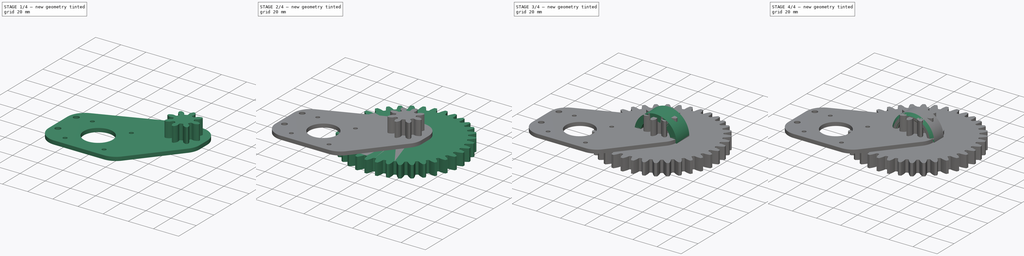
[diagram: build sequence overview — one tinted view per stage of 4, left to right]
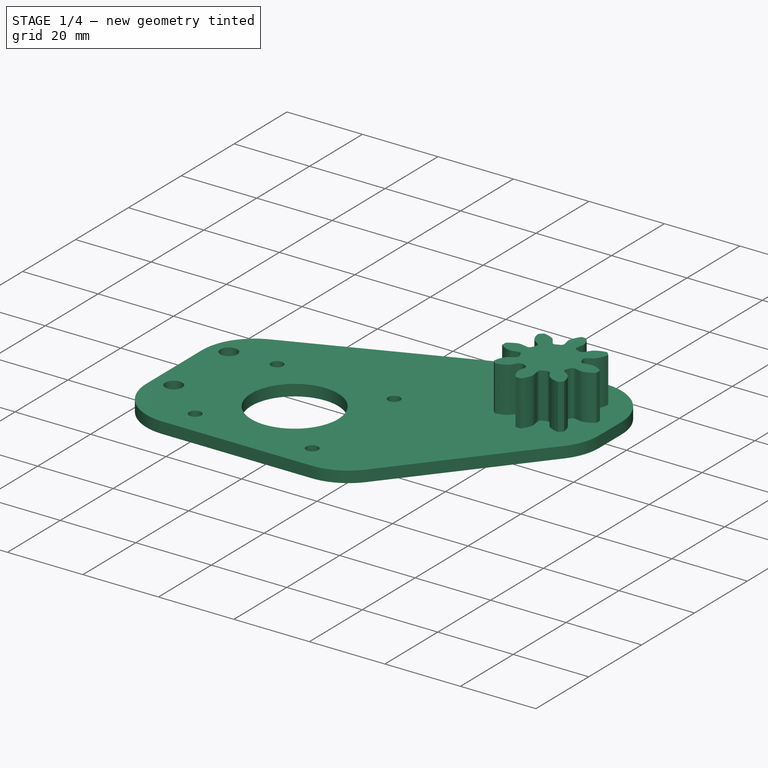
[diagram: stage 1 of 4 — iso view after this stage's code; geometry added in this stage tinted green]
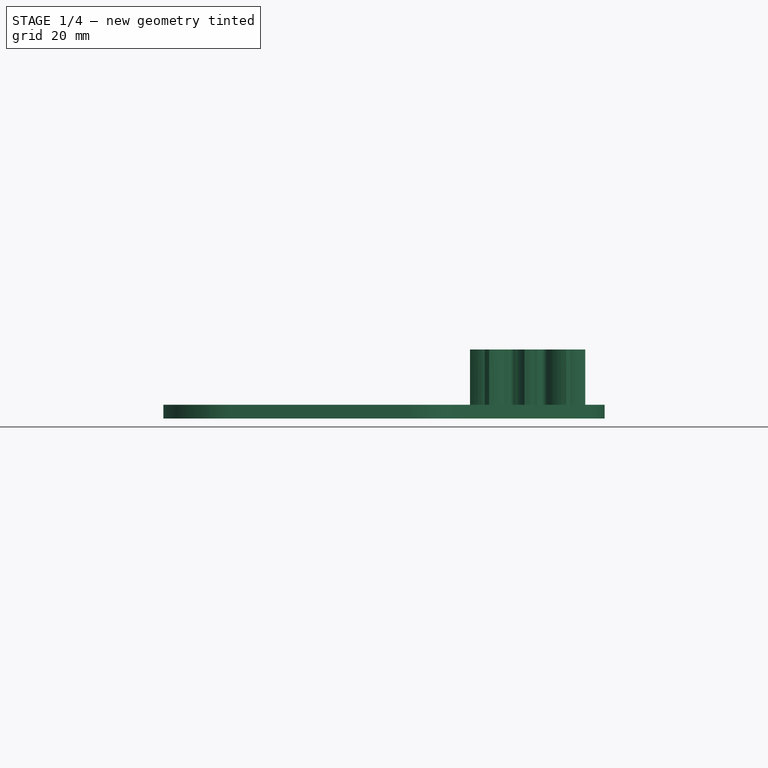
[diagram: stage 1 of 4 — front view after this stage's code; geometry added in this stage tinted green]
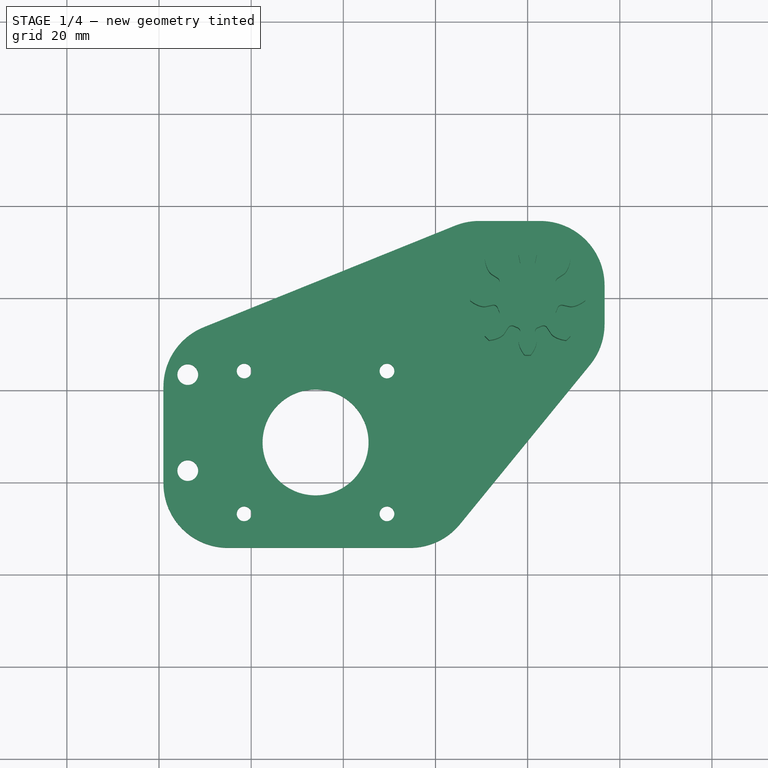
[diagram: stage 1 of 4 — top view after this stage's code; geometry added in this stage tinted green]
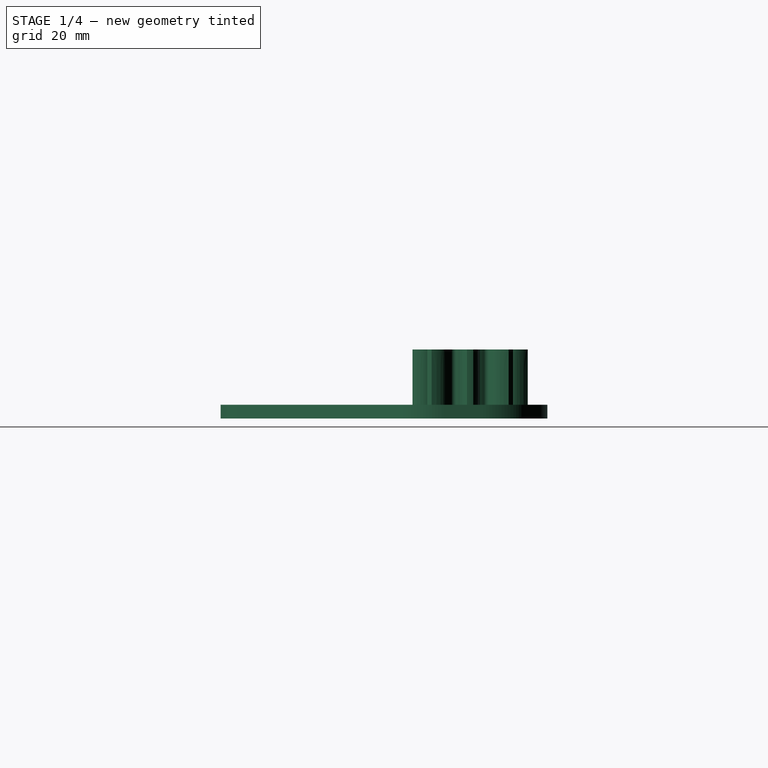
[diagram: stage 1 of 4 — right view after this stage's code; geometry added in this stage tinted green]
FCSTD DOCUMENT  (FreeCAD 0.21R33771 (Git))
Label: update_rolo
License: All rights reserved
LicenseURL: http://en.wikipedia.org/wiki/All_rights_reserved
objects: Sketcher::SketchObject×5, PartDesign::Pad×5, PartDesign::Body×4, PartDesign::Pocket×3, PartDesign::Chamfer×3, Part::Part2DObjectPython×3, PartDesign::Fillet×2, Part::Feature×2, PartDesign::Hole×1
note: 42 computed .brp shape members not serialized (recipe doc carries the construction recipe); baked Part::Feature solids carry a one-line shape summary decoded from their .brp

FEATURE [PartDesign::Body] Body001  label="reducao"
  Group = -> [InvoluteGear,InvoluteGear001,Sketch002,Pad001,Pad002,Pocket001]
  Origin = -> Origin001
  Tip = -> Pocket001
FEATURE [Part::Part2DObjectPython] InvoluteGear002  # Draft 2D object (typed FeaturePython)
  AddendumCoefficient = 1
  DedendumCoefficient = 1.25
  ExternalGear = true
  HighPrecision = true
  Modules = 2.5
  NumberOfTeeth = 8
  PressureAngle = 20
  ProfileShiftCoefficient = 0
  RootFilletCoefficient = 0.38
FEATURE [Part::Feature] Part__Feature  label="Body"
  Placement = pos=(-46,-31.3,-17.1) rot=(0,0,1;0rad)
  shape: bbox 42 x 42 x 47 mm, 22 faces (baked)
FEATURE [PartDesign::Pad] Pad003
  Direction = (0,0,1)
  Length = 15
  Length2 = 10
  Profile = -> InvoluteGear002
  ReferenceAxis = -> InvoluteGear002 [N_Axis]
  Type = 0
FEATURE [PartDesign::Body] Body002  label="pinhao"
  Group = -> [InvoluteGear002,Pad003]
  Origin = -> Origin002
  Placement = pos=(-46.0211,-31.401,-11) rot=(0,0,-1;0.244346rad)
  Tip = -> Pad003
FEATURE [Sketcher::SketchObject] Sketch003
  FullyConstrained = false
  MapMode = 5
  Support = -> [XY_Plane003]
  sketch-geometry (6):
    g0: LineSegment StartX=-79.0402 StartY=-9.81434 StartZ=0 EndX=-79.0402 EndY=-54.1565 EndZ=0
    g1: LineSegment StartX=-79.0402 StartY=-54.1565 StartZ=0 EndX=-18.8889 EndY=-54.1565 EndZ=0
    g2: LineSegment StartX=16.6954 StartY=-10.5598 StartZ=0 EndX=16.6954 EndY=16.7765 EndZ=0
    g3: LineSegment StartX=16.6954 StartY=16.7765 StartZ=0 EndX=-13.2331 EndY=16.7765 EndZ=0
    g4: LineSegment StartX=-13.2331 StartY=16.7765 StartZ=0 EndX=-79.0402 EndY=-9.81434 EndZ=0
    g5: LineSegment StartX=-18.8889 StartY=-54.1565 StartZ=0 EndX=16.6954 EndY=-10.5598 EndZ=0
  constraints (10):
    c: Vertical(g0)
    c: Coincident(g0,g1)
    c: Horizontal(g1)
    c: Vertical(g2)
    c: Coincident(g2,g3)
    c: Horizontal(g3)
    c: Coincident(g3,g4)
    c: Coincident(g4,g0)
    c: Coincident(g5,g1)
    c: Coincident(g5,g2)
FEATURE [Sketcher::SketchObject] Sketch004
  FullyConstrained = false
  MapMode = 5
  Support = -> [XY_Plane003]
  sketch-geometry (13):
    g0: Circle CenterX=0 CenterY=0 CenterZ=0 NormalX=0 NormalY=0 NormalZ=1 AngleXU=0 Radius=2.25
    g1: LineSegment StartX=-61.5285 StartY=-15.7816 StartZ=0 EndX=-30.5285 EndY=-15.7816 EndZ=0
    g2: LineSegment StartX=-30.5285 StartY=-15.7816 StartZ=0 EndX=-30.5285 EndY=-46.7816 EndZ=0
    g3: LineSegment StartX=-30.5285 StartY=-46.7816 StartZ=0 EndX=-61.5285 EndY=-46.7816 EndZ=0
    g4: LineSegment StartX=-61.5285 StartY=-46.7816 StartZ=0 EndX=-61.5285 EndY=-15.7816 EndZ=0
    g5: Circle CenterX=-61.5285 CenterY=-15.7816 CenterZ=0 NormalX=0 NormalY=0 NormalZ=1 AngleXU=0 Radius=1.6
    g6: Circle CenterX=-30.5285 CenterY=-15.7816 CenterZ=0 NormalX=0 NormalY=0 NormalZ=1 AngleXU=0 Radius=1.6
    g7: Circle CenterX=-61.5285 CenterY=-46.7816 CenterZ=0 NormalX=0 NormalY=0 NormalZ=1 AngleXU=0 Radius=1.6
    g8: Circle CenterX=-30.5285 CenterY=-46.7816 CenterZ=0 NormalX=0 NormalY=0 NormalZ=1 AngleXU=0 Radius=1.6
    g9: Circle CenterX=-46.0285 CenterY=-31.2816 CenterZ=0 NormalX=0 NormalY=0 NormalZ=1 AngleXU=0 Radius=15.5
    g10: Circle CenterX=-46.0285 CenterY=-31.2816 CenterZ=0 NormalX=0 NormalY=0 NormalZ=1 AngleXU=0 Radius=11.5
    g11: Circle CenterX=-73.7574 CenterY=-16.5649 CenterZ=0 NormalX=0 NormalY=0 NormalZ=1 AngleXU=0 Radius=2.25
    g12: Circle CenterX=-73.7574 CenterY=-37.4025 CenterZ=0 NormalX=0 NormalY=0 NormalZ=1 AngleXU=0 Radius=2.25
  constraints (28):
    c: Coincident(g0,g-1)
    c: Diameter(g0) = 4.5
    c: Coincident(g1,g2)
    c: Coincident(g2,g3)
    c: Coincident(g3,g4)
    c: Coincident(g4,g1)
    c: Horizontal(g1)
    c: Horizontal(g3)
    c: Vertical(g2)
    c: Vertical(g4)
    c: Equal(g2,g3)
    c: DistanceY(g2,g2) = 31
    c: Coincident(g5,g1)
    c: Diameter(g5) = 3.2
    c: Equal(g5,g6) = 3.2
    c: Equal(g5,g7) = 3.2
    c: Equal(g5,g8) = 3.2
    c: Tangent(g9,g1)
    c: Tangent(g9,g3)
    c: Tangent(g9,g4)
    c: Coincident(g3,g7)
    c: Coincident(g2,g8)
    c: Coincident(g1,g6)
    c: Coincident(g10,g9)
    c: Diameter(g10) = 23
    c: Vertical(g12,g11)
    c: Equal(g12,g11)
    c: Equal(g11,g0)
FEATURE [PartDesign::Pad] Pad004
  Direction = (0,0,1)
  Length = 3
  Length2 = 10
  Profile = -> Sketch003
  ReferenceAxis = -> Sketch003 [N_Axis]
  Type = 0
FEATURE [PartDesign::Pocket] Pocket002
  BaseFeature = -> Pad004
  Direction = (0,0,-1)
  Length = 5
  Length2 = 5
  Midplane = true
  Profile = -> Sketch004
  ReferenceAxis = -> Sketch004 [N_Axis]
  Type = 1
FEATURE [PartDesign::Fillet] Fillet001
  Base = -> Pocket002 [Edge2,Edge1,Edge8,Edge34,Edge33,Edge5]
  BaseFeature = -> Pocket002
  Radius = 14
  SupportTransform = false
  UseAllEdges = false
FEATURE [PartDesign::Body] Body003  label="suporte"
  Group = -> [Sketch003,Sketch004,Pad004,Pocket002,Fillet001]
  Origin = -> Origin003
  Placement = pos=(0,0,-16.7) rot=(0,0,1;0rad)
  Tip = -> Fillet001
FEATURE [Part::Feature] Body004  label="suporte001"
  Placement = pos=(0,0,15.5) rot=(0,0,1;0rad)
  shape: bbox 95.74 x 70.93 x 3 mm, 22 faces (baked)
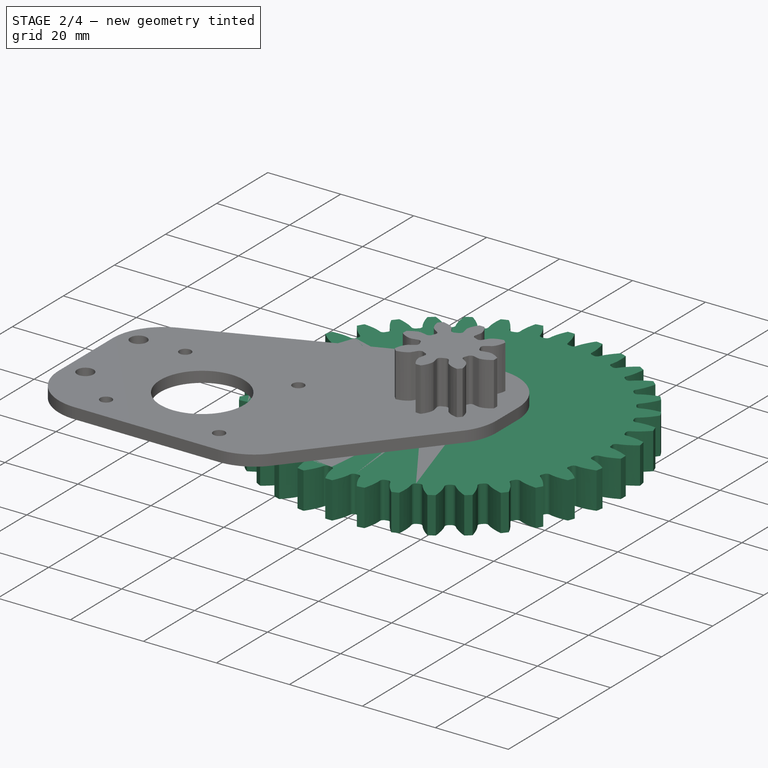
[diagram: stage 2 of 4 — iso view after this stage's code; geometry added in this stage tinted green]
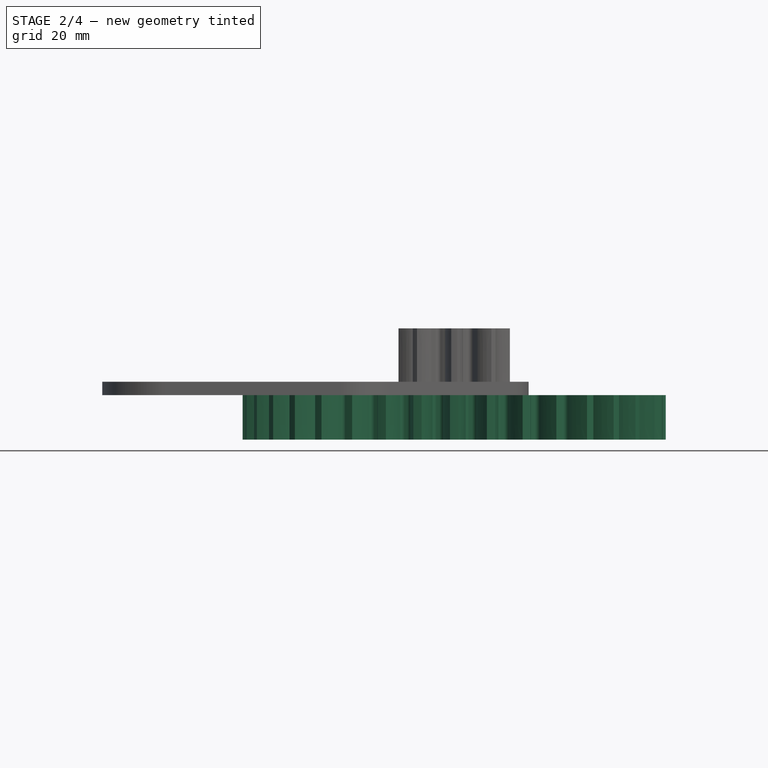
[diagram: stage 2 of 4 — front view after this stage's code; geometry added in this stage tinted green]
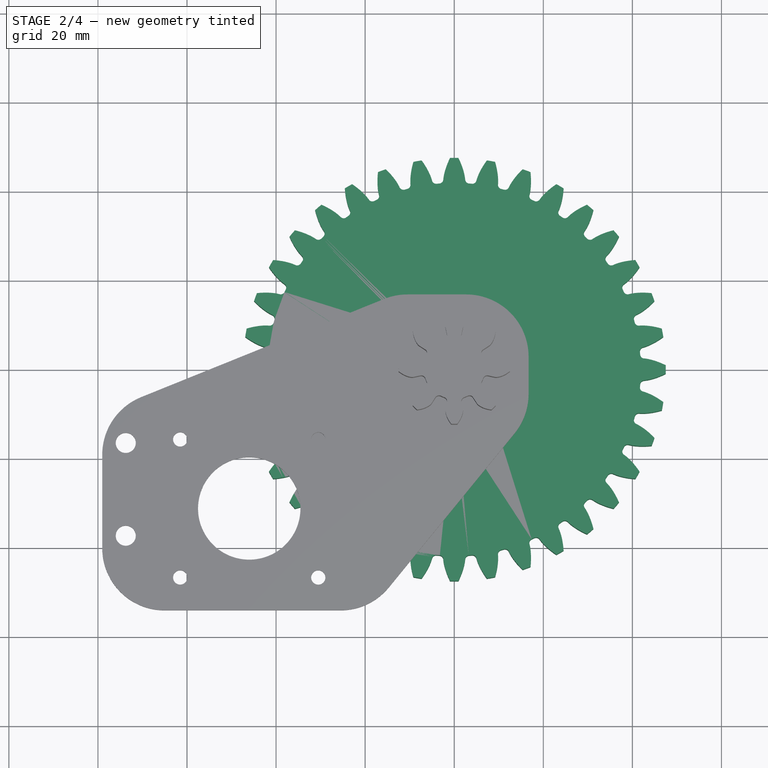
[diagram: stage 2 of 4 — top view after this stage's code; geometry added in this stage tinted green]
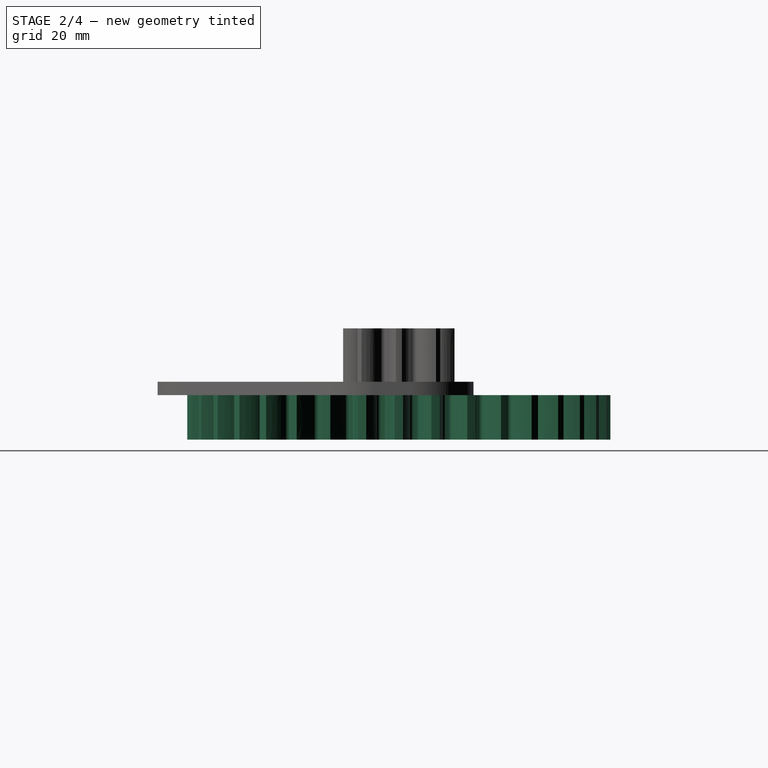
[diagram: stage 2 of 4 — right view after this stage's code; geometry added in this stage tinted green]
FEATURE [PartDesign::Body] Body  label="mancal"
  Group = -> [Sketch,Pad,Sketch001,Pocket,Hole,Fillet,Chamfer,Chamfer001,Chamfer002]
  Origin = -> Origin
  Tip = -> Chamfer002
FEATURE [Part::Part2DObjectPython] InvoluteGear  # Draft 2D object (typed FeaturePython)
  AddendumCoefficient = 1
  DedendumCoefficient = 1.25
  ExternalGear = true
  HighPrecision = true
  Modules = 2.5
  NumberOfTeeth = 8
  PressureAngle = 20
  ProfileShiftCoefficient = 0
  RootFilletCoefficient = 0.38
FEATURE [Part::Part2DObjectPython] InvoluteGear001  # Draft 2D object (typed FeaturePython)
  AddendumCoefficient = 1
  DedendumCoefficient = 1.25
  ExternalGear = true
  HighPrecision = true
  Modules = 2.5
  NumberOfTeeth = 36
  PressureAngle = 20
  ProfileShiftCoefficient = 0
  RootFilletCoefficient = 0.38
FEATURE [Sketcher::SketchObject] Sketch002
  FullyConstrained = true
  MapMode = 5
  Support = -> [XY_Plane001]
  sketch-geometry (1):
    g0: Circle CenterX=0 CenterY=0 CenterZ=0 NormalX=0 NormalY=0 NormalZ=1 AngleXU=0 Radius=2
  constraints (2):
    c: Coincident(g0,g-1)
    c: Diameter(g0) = 4
FEATURE [PartDesign::Pad] Pad001
  Direction = (0,0,1)
  Length = 10
  Length2 = 10
  Profile = -> InvoluteGear001
  ReferenceAxis = -> InvoluteGear001 [N_Axis]
  Reversed = true
  Type = 0
FEATURE [PartDesign::Pad] Pad002
  BaseFeature = -> Pad001
  Direction = (0,0,1)
  Length = 15
  Length2 = 10
  Profile = -> InvoluteGear
  ReferenceAxis = -> InvoluteGear [N_Axis]
  Type = 0
FEATURE [PartDesign::Pocket] Pocket001
  BaseFeature = -> Pad002
  Direction = (0,0,-1)
  Length = 5
  Length2 = 5
  Midplane = true
  Profile = -> Sketch002
  ReferenceAxis = -> Sketch002 [N_Axis]
  Type = 1
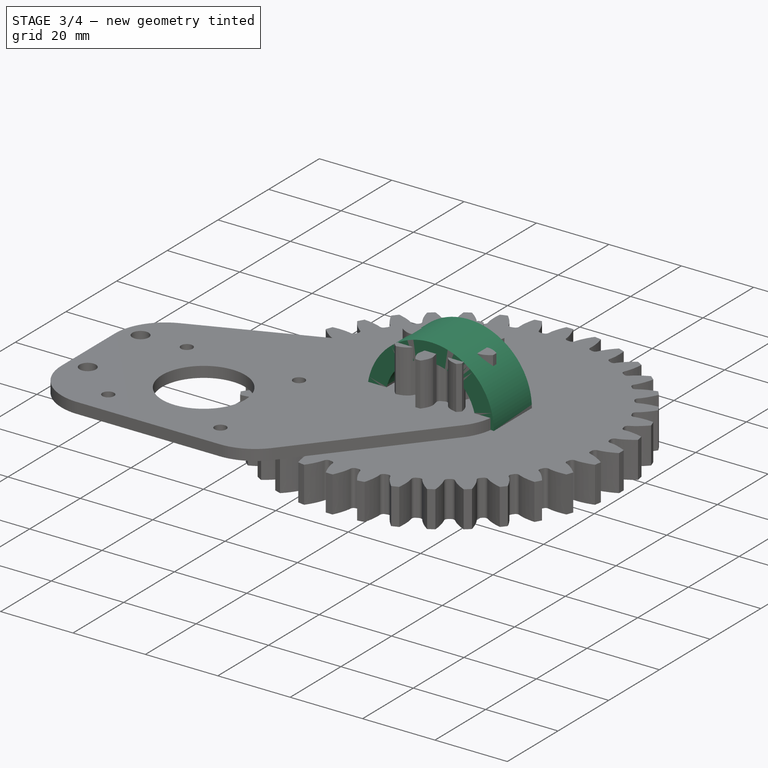
[diagram: stage 3 of 4 — iso view after this stage's code; geometry added in this stage tinted green]
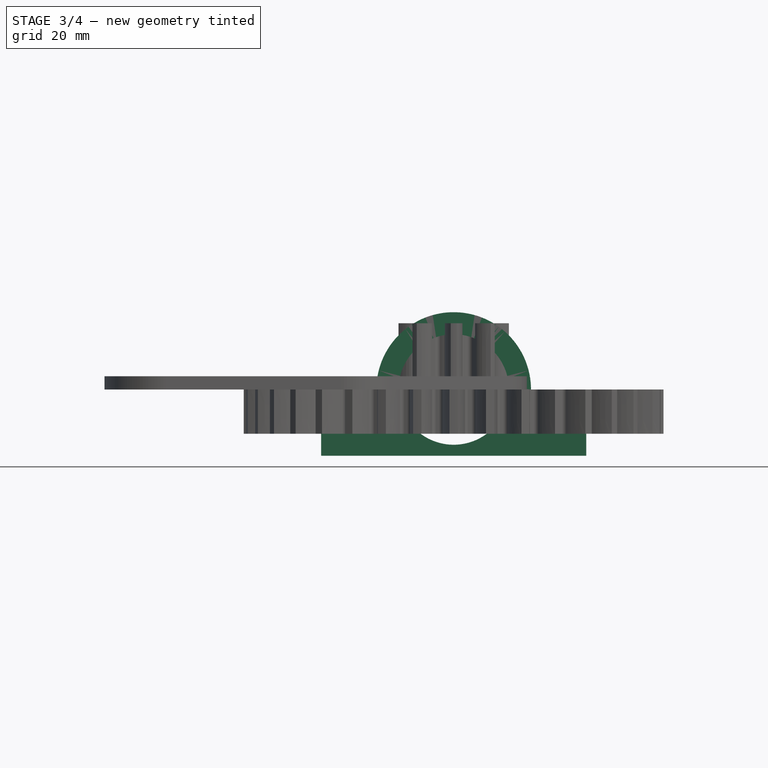
[diagram: stage 3 of 4 — front view after this stage's code; geometry added in this stage tinted green]
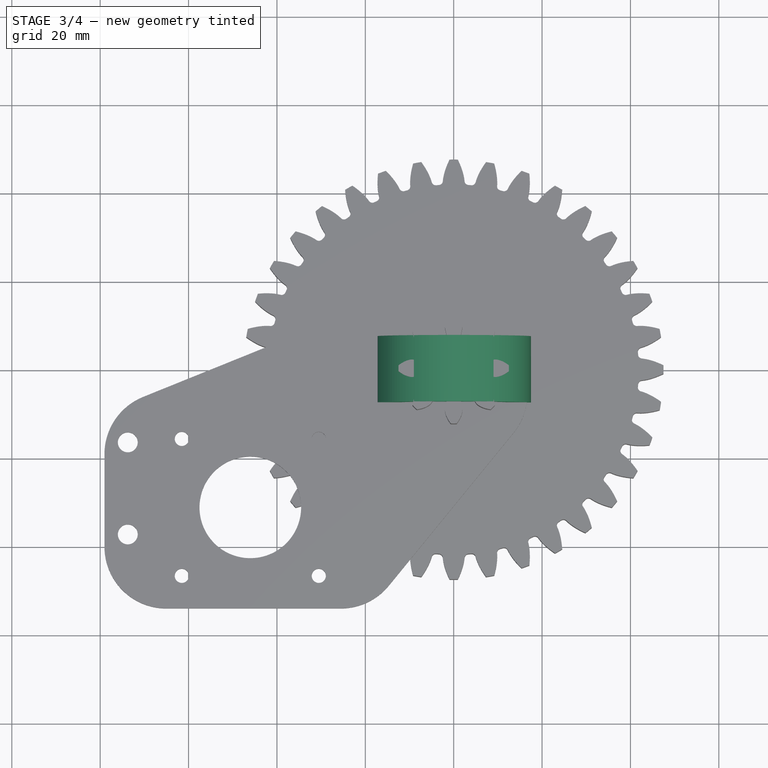
[diagram: stage 3 of 4 — top view after this stage's code; geometry added in this stage tinted green]
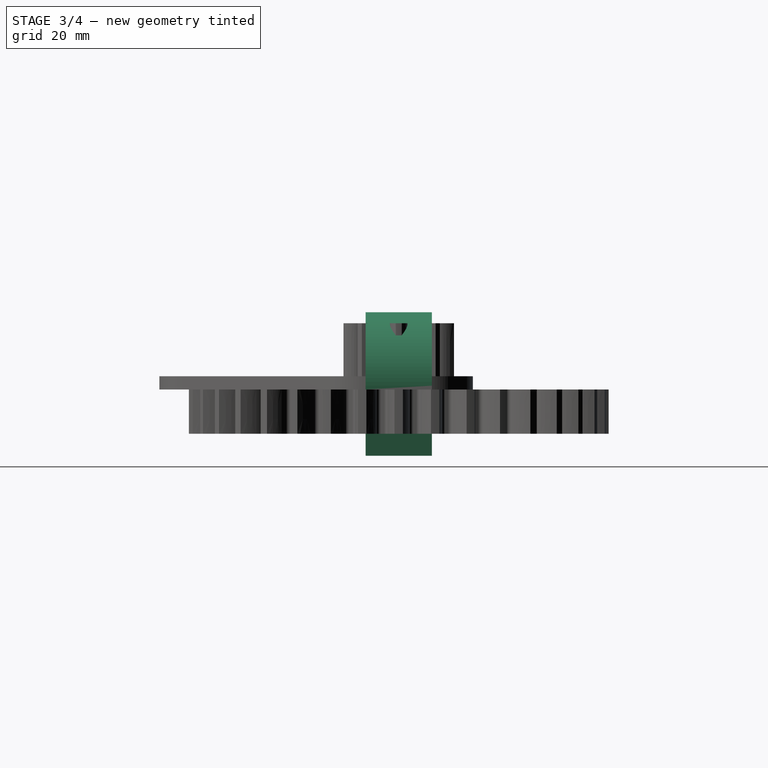
[diagram: stage 3 of 4 — right view after this stage's code; geometry added in this stage tinted green]
FEATURE [Sketcher::SketchObject] Sketch
  FullyConstrained = true
  MapMode = 5
  Placement = pos=(0,0,0) rot=(1,0,0;1.5708rad)
  Support = -> [XZ_Plane]
  expr: Constraints[3] = .Constraints.diaEixCarr + 10 mm
  sketch-geometry (10):
    g0: Circle CenterX=0 CenterY=0 CenterZ=0 NormalX=0 NormalY=0 NormalZ=1 AngleXU=0 Radius=12.5
    g1: ArcOfCircle CenterX=0 CenterY=0 CenterZ=0 NormalX=0 NormalY=0 NormalZ=1 AngleXU=0 Radius=17.5 StartAngle=0 EndAngle=3.14159
    g2: LineSegment StartX=-30 StartY=-8 StartZ=0 EndX=30 EndY=-8 EndZ=0
    g3: LineSegment StartX=30 StartY=-8 StartZ=0 EndX=30 EndY=-15 EndZ=0
    g4: LineSegment StartX=30 StartY=-15 StartZ=0 EndX=-30 EndY=-15 EndZ=0
    g5: LineSegment StartX=-30 StartY=-15 StartZ=0 EndX=-30 EndY=-8 EndZ=0
    g6: LineSegment StartX=-30 StartY=-8 StartZ=0 EndX=-17.5 EndY=-8 EndZ=0
    g7: LineSegment StartX=-17.5 StartY=-8 StartZ=0 EndX=-17.5 EndY=1.8e-15 EndZ=0
    g8: LineSegment StartX=30 StartY=-8 StartZ=0 EndX=17.5 EndY=-8 EndZ=0
    g9: LineSegment StartX=17.5 StartY=-8 StartZ=0 EndX=17.5 EndY=0 EndZ=0
  constraints (25):
    c: Coincident(g0,g-1)
    c: Diameter(g0) = 25  'diaEixCarr'
    c: Coincident(g1,g0)
    c: Diameter(g1) = 35
    c: Coincident(g2,g3)
    c: Coincident(g3,g4)
    c: Coincident(g4,g5)
    c: Coincident(g5,g2)
    c: Horizontal(g2)
    c: Vertical(g3)
    c: Vertical(g5)
    c: Symmetric(g4,g3,g-2)
    c: DistanceY(g5,g5) = 7
    c: DistanceX(g4,g4) = 60
    c: DistanceY(g3,g-1) = 15
    c: Coincident(g5,g6)
    c: PointOnObject(g6,g2)
    c: Coincident(g6,g7)
    c: Vertical(g7)
    c: Tangent(g7,g1) = 1.5708
    c: Coincident(g3,g8)
    c: PointOnObject(g8,g2)
    c: Coincident(g8,g9)
    c: Vertical(g9)
    c: Tangent(g9,g1) = -1.5708
FEATURE [PartDesign::Pad] Pad
  Direction = (0,-1,2e-16)
  Length = 15
  Length2 = 10
  Midplane = true
  Placement = pos=(0,0,0) rot=(1,0,0;1.5708rad)
  Profile = -> Sketch
  ReferenceAxis = -> Sketch [N_Axis]
  Type = 0
FEATURE [Sketcher::SketchObject] Sketch001
  FullyConstrained = true
  MapMode = 5
  Support = -> [XY_Plane]
  sketch-geometry (2):
    g0: Circle CenterX=-23.5 CenterY=0 CenterZ=0 NormalX=0 NormalY=0 NormalZ=1 AngleXU=0 Radius=1.5
    g1: Circle CenterX=23.5 CenterY=0 CenterZ=0 NormalX=0 NormalY=0 NormalZ=1 AngleXU=0 Radius=1.5
  constraints (5):
    c: PointOnObject(g0,g-1)
    c: Diameter(g0) = 3
    c: Equal(g0,g1) = 3
    c: Symmetric(g1,g0,g-2)
    c: DistanceX(g0,g1) = 47
FEATURE [PartDesign::Pocket] Pocket
  BaseFeature = -> Pad
  Direction = (0,0,-1)
  Length = 5
  Length2 = 5
  Placement = pos=(0,0,0) rot=(1,0,0;1.5708rad)
  Profile = -> Sketch001
  ReferenceAxis = -> Sketch001 [N_Axis]
  Type = 1
FEATURE [PartDesign::Hole] Hole
  BaseFeature = -> Pocket
  CustomThreadClearance = 0
  Depth = 25
  DepthType = 0
  Diameter = 4.5
  DrillForDepth = false
  DrillPoint = 1
  DrillPointAngle = 118
  HoleCutCountersinkAngle = 90
  HoleCutCustomValues = false
  HoleCutDepth = 0
  HoleCutDiameter = 8
  HoleCutType = 2
  ModelThread = false
  Placement = pos=(0,0,0) rot=(1,0,0;1.5708rad)
  Profile = -> Pocket [Edge5,Edge31]
  Tapered = false
  TaperedAngle = 90
  ThreadClass = 0
  ThreadDepth = 25
  ThreadDepthType = 0
  ThreadDirection = 0
  ThreadFit = 0
  ThreadSize = 11
  ThreadType = 1
  Threaded = false
  UseCustomThreadClearance = false
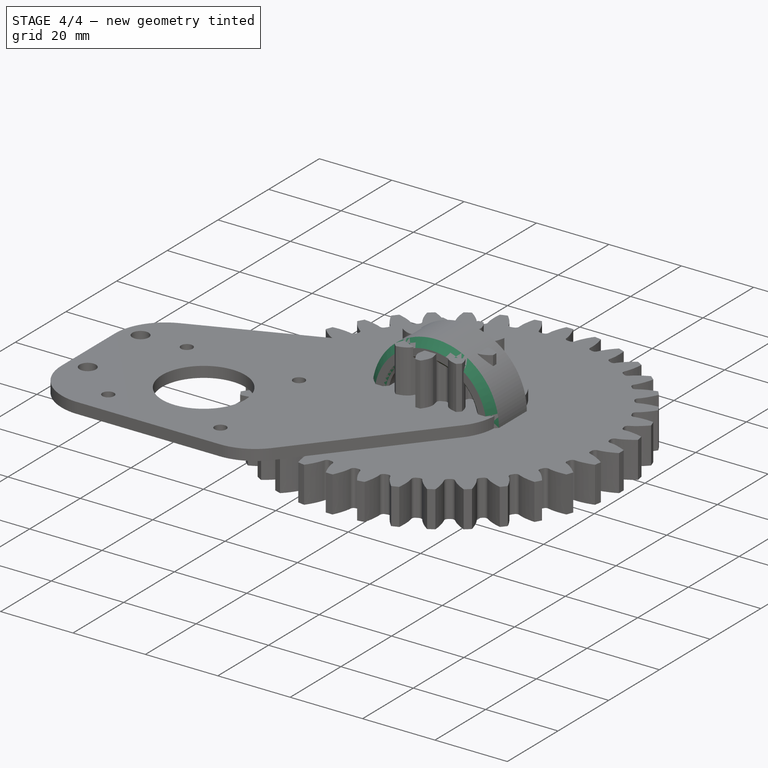
[diagram: stage 4 of 4 — iso view after this stage's code; geometry added in this stage tinted green]
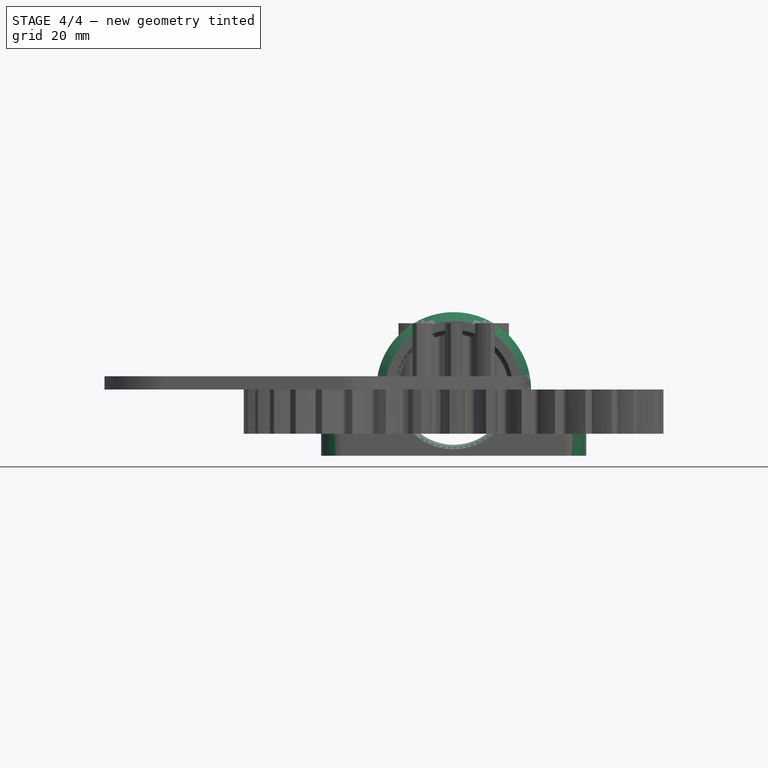
[diagram: stage 4 of 4 — front view after this stage's code; geometry added in this stage tinted green]
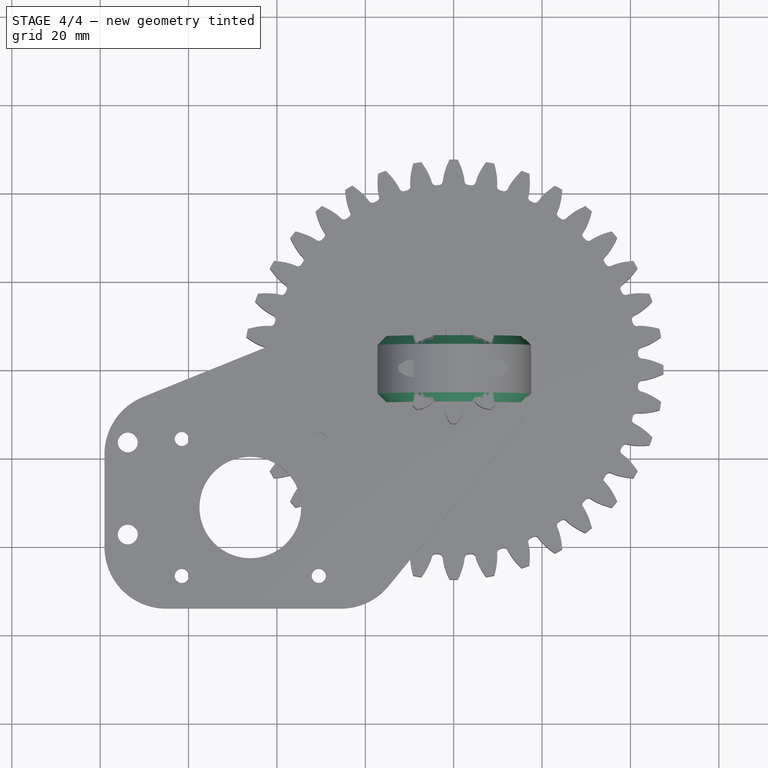
[diagram: stage 4 of 4 — top view after this stage's code; geometry added in this stage tinted green]
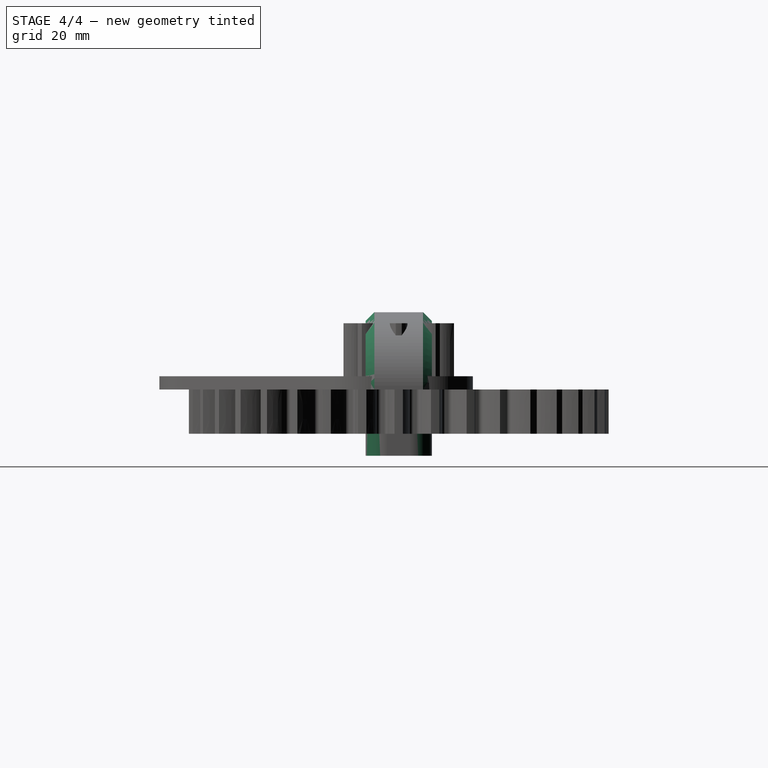
[diagram: stage 4 of 4 — right view after this stage's code; geometry added in this stage tinted green]
FEATURE [PartDesign::Fillet] Fillet
  Base = -> Hole [Edge8,Edge7,Edge20,Edge13]
  BaseFeature = -> Hole
  Placement = pos=(0,0,0) rot=(1,0,0;1.5708rad)
  Radius = 5
  SupportTransform = false
  UseAllEdges = false
FEATURE [PartDesign::Chamfer] Chamfer
  Angle = 45
  Base = -> Fillet [Edge6,Edge40]
  BaseFeature = -> Fillet
  ChamferType = 0
  FlipDirection = false
  Placement = pos=(0,0,0) rot=(1,0,0;1.5708rad)
  Size = 1.5
  Size2 = 1
  SupportTransform = false
  UseAllEdges = false
FEATURE [PartDesign::Chamfer] Chamfer001
  Angle = 45
  Base = -> Chamfer [Edge25,Edge12,Edge5,Edge47,Edge19,Edge8,Edge29,Edge16]
  BaseFeature = -> Chamfer
  ChamferType = 0
  FlipDirection = false
  Placement = pos=(0,0,0) rot=(1,0,0;1.5708rad)
  Size = 2
  Size2 = 1
  SupportTransform = false
  UseAllEdges = false
FEATURE [PartDesign::Chamfer] Chamfer002
  Angle = 45
  Base = -> Chamfer001 [Edge48,Edge39]
  BaseFeature = -> Chamfer001
  ChamferType = 0
  FlipDirection = false
  Placement = pos=(0,0,0) rot=(1,0,0;1.5708rad)
  Size = 1
  Size2 = 1
  SupportTransform = false
  UseAllEdges = false
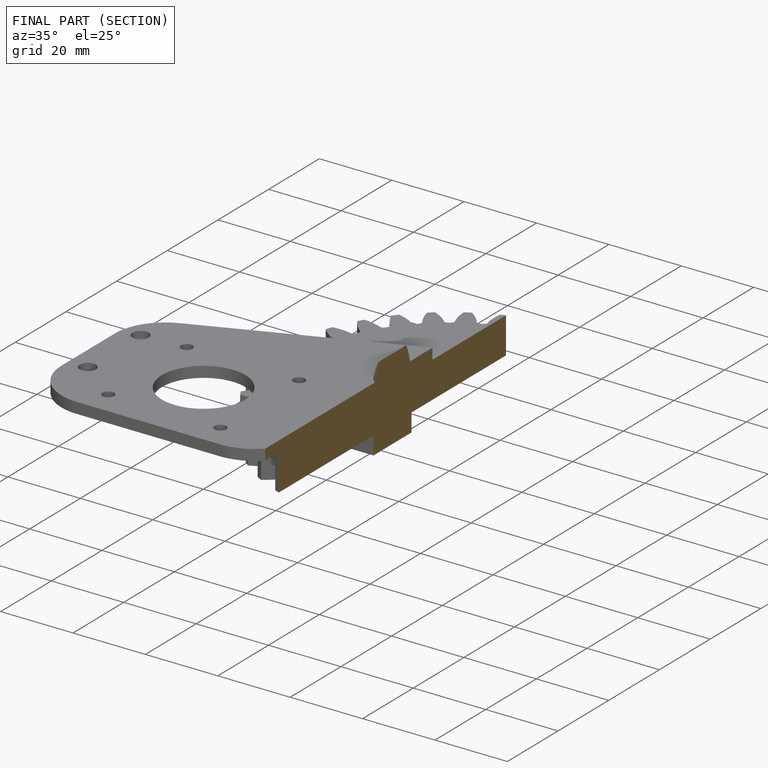
[diagram: finished part — half-section view (interior)]
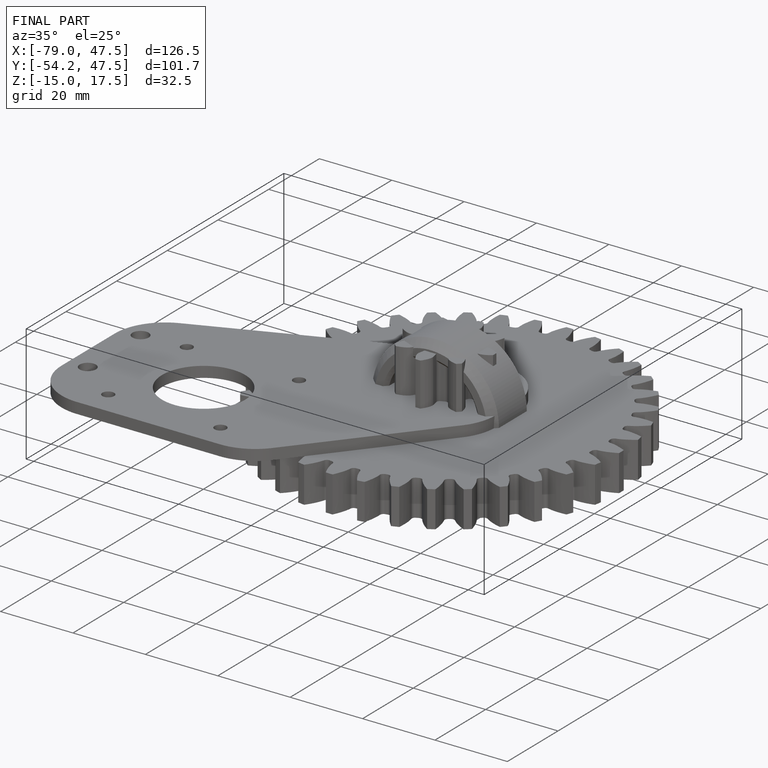
[diagram: finished part — iso view with bounding-box wireframe]
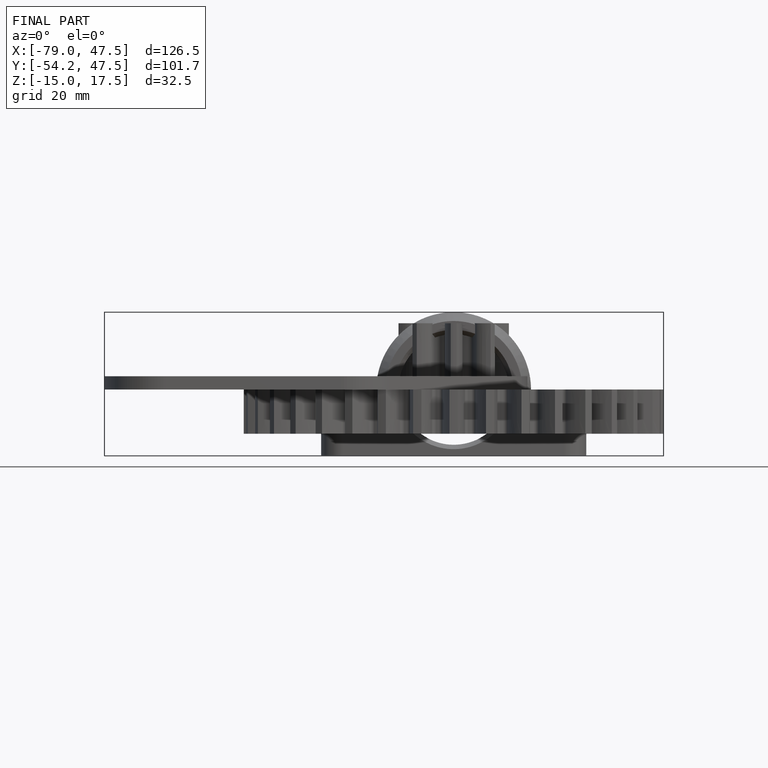
[diagram: finished part — front view with bounding-box wireframe]
